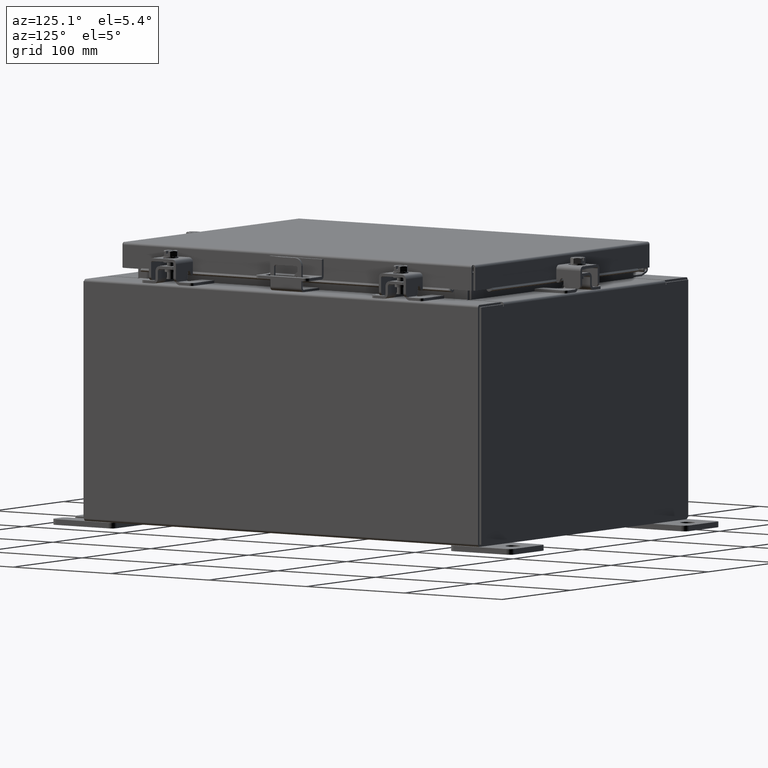
[diagram: clean part render]
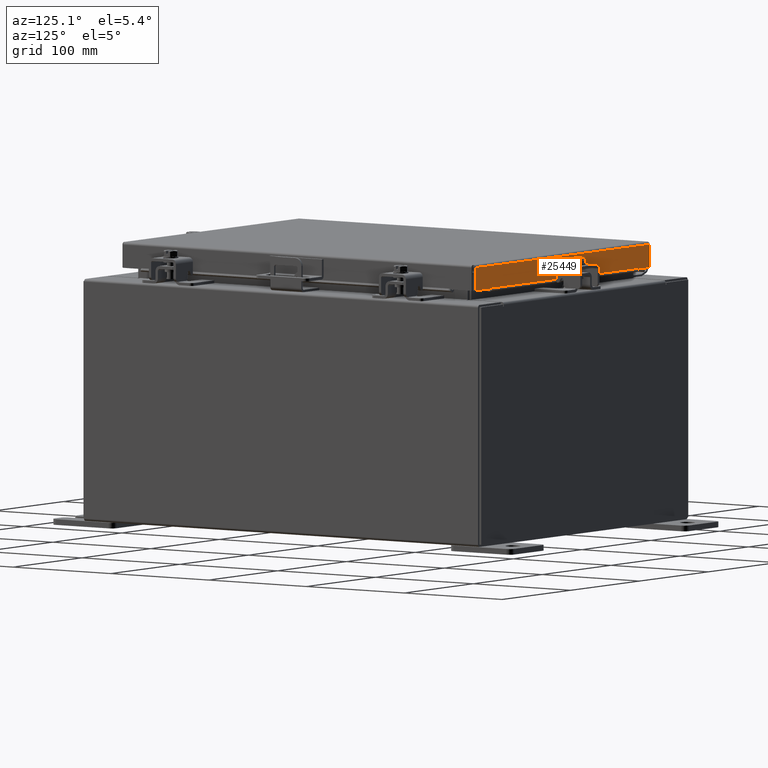
[diagram: same view with one face highlighted and labeled with its STEP entity id]
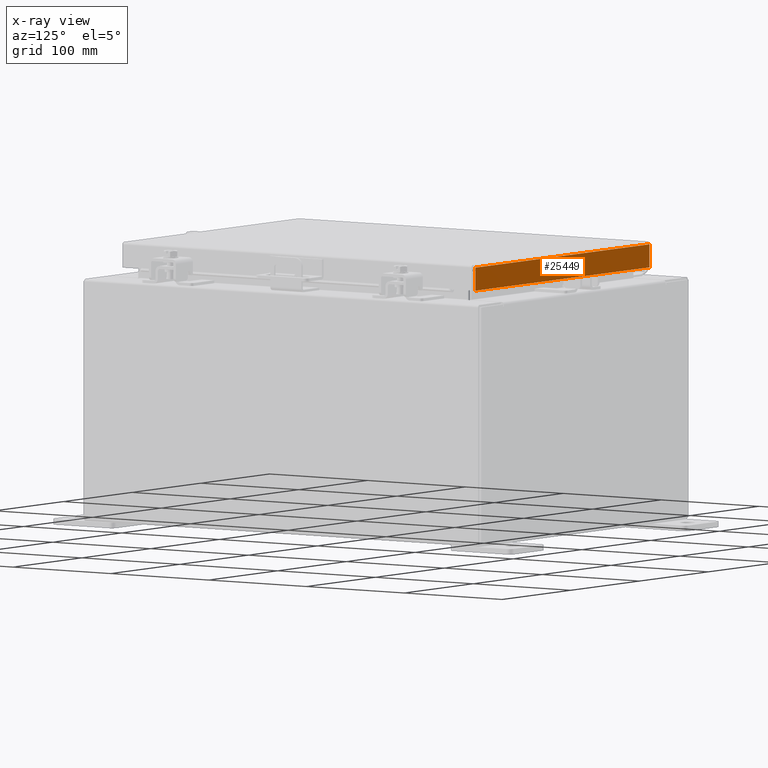
[diagram: x-ray of the same camera — body ghosted, the highlighted face saturated]
A machine part, auxiliary view. The second image highlights one B-rep face of the part: STEP entity #25449.
The next image is the same camera in x-ray: the body ghosted, the highlighted face saturated — about 0% of this face is hidden behind the body in this view.
In plain terms, the highlighted planar face has unit normal (0, -1, -0).
Its self-contained STEP definition (entity closure, byte-faithful):
#674 = DIRECTION ( 'NONE',  ( 0.0000000000000000000, 2.818880942772355800E-015, -1.000000000000000000 ) ) ;
#2104 = CARTESIAN_POINT ( 'NONE',  ( -4.989157864376269700, 7.094000000000002100, -0.8500000000000008700 ) ) ;
#3568 = ORIENTED_EDGE ( 'NONE', *, *, #5318, .F. ) ;
#3609 = VECTOR ( 'NONE', #17581, 39.37007874015748100 ) ;
#3754 = CARTESIAN_POINT ( 'NONE',  ( 4.239157864376265300, 7.093999999999996800, -0.8500000000000014200 ) ) ;
#4189 = CARTESIAN_POINT ( 'NONE',  ( -5.078000000000001200, 7.094000000000000300, -0.08770000000000007000 ) ) ;
#4398 = VECTOR ( 'NONE', #5850, 39.37007874015748100 ) ;
#4583 = VERTEX_POINT ( 'NONE', #15634 ) ;
#5318 = EDGE_CURVE ( 'NONE', #23963, #20522, #25183, .T. ) ;
#5321 = CARTESIAN_POINT ( 'NONE',  ( 4.989157864376268000, 7.094000000000000300, -0.08770000000000007000 ) ) ;
#5396 = CARTESIAN_POINT ( 'NONE',  ( -4.989157864376269700, 7.094000000000000300, -0.08770000000000007000 ) ) ;
#5850 = DIRECTION ( 'NONE',  ( -0.0000000000000000000, 2.818880942772355800E-015, -1.000000000000000000 ) ) ;
#6081 = FACE_OUTER_BOUND ( 'NONE', #12523, .T. ) ;
#6633 = PLANE ( 'NONE',  #14930 ) ;
#7409 = LINE ( 'NONE', #8826, #22161 ) ;
#8186 = EDGE_CURVE ( 'NONE', #18097, #4583, #7409, .T. ) ;
#8378 = EDGE_CURVE ( 'NONE', #20522, #15212, #18379, .T. ) ;
#8560 = VERTEX_POINT ( 'NONE', #3754 ) ;
#8826 = CARTESIAN_POINT ( 'NONE',  ( 4.989157864376268000, 7.094000000000000300, 2.025795506403867700E-014 ) ) ;
#8937 = DIRECTION ( 'NONE',  ( 1.000000000000000000, 4.379057701015054300E-047, 1.210448599004449200E-016 ) ) ;
#8938 = LINE ( 'NONE', #23584, #3609 ) ;
#9663 = LINE ( 'NONE', #4189, #23183 ) ;
#10610 = ORIENTED_EDGE ( 'NONE', *, *, #17746, .F. ) ;
#10839 = DIRECTION ( 'NONE',  ( 0.0000000000000000000, 2.818880942772355800E-015, -1.000000000000000000 ) ) ;
#10975 = LINE ( 'NONE', #23024, #21024 ) ;
#10993 = DIRECTION ( 'NONE',  ( 1.000000000000000000, 4.379057701015054300E-047, 1.210448599004449200E-016 ) ) ;
#11093 = EDGE_CURVE ( 'NONE', #8560, #4583, #10975, .T. ) ;
#12523 = EDGE_LOOP ( 'NONE', ( #10610, #23743, #14621, #18850, #12795, #3568 ) ) ;
#12679 = DIRECTION ( 'NONE',  ( 3.412110487939139000E-031, -1.000000000000000000, -2.818880942772355800E-015 ) ) ;
#12795 = ORIENTED_EDGE ( 'NONE', *, *, #8378, .F. ) ;
#14621 = ORIENTED_EDGE ( 'NONE', *, *, #11093, .F. ) ;
#14930 = AXIS2_PLACEMENT_3D ( 'NONE', #22532, #12679, #674 ) ;
#15212 = VERTEX_POINT ( 'NONE', #25044 ) ;
#15634 = CARTESIAN_POINT ( 'NONE',  ( 4.989157864376268000, 7.094000000000002100, -0.8499999999999996400 ) ) ;
#15851 = CARTESIAN_POINT ( 'NONE',  ( -4.989157864376269700, 7.094000000000000300, -0.07469999999999978000 ) ) ;
#16201 = DIRECTION ( 'NONE',  ( -1.000000000000000000, -3.412110487939139000E-031, -9.300620212429613300E-046 ) ) ;
#17581 = DIRECTION ( 'NONE',  ( 1.000000000000000000, -0.0000000000000000000, -0.0000000000000000000 ) ) ;
#17746 = EDGE_CURVE ( 'NONE', #18097, #23963, #9663, .T. ) ;
#18097 = VERTEX_POINT ( 'NONE', #5321 ) ;
#18379 = LINE ( 'NONE', #22995, #22461 ) ;
#18850 = ORIENTED_EDGE ( 'NONE', *, *, #20354, .F. ) ;
#20354 = EDGE_CURVE ( 'NONE', #15212, #8560, #8938, .T. ) ;
#20522 = VERTEX_POINT ( 'NONE', #2104 ) ;
#21024 = VECTOR ( 'NONE', #10993, 39.37007874015748100 ) ;
#22161 = VECTOR ( 'NONE', #10839, 39.37007874015748100 ) ;
#22461 = VECTOR ( 'NONE', #8937, 39.37007874015748100 ) ;
#22532 = CARTESIAN_POINT ( 'NONE',  ( -2.420551180144025400E-030, 7.094000000000000300, 2.025795506403867700E-014 ) ) ;
#22995 = CARTESIAN_POINT ( 'NONE',  ( -5.078000000000001200, 7.094000000000002100, -0.8500000000000008700 ) ) ;
#23024 = CARTESIAN_POINT ( 'NONE',  ( -5.078000000000001200, 7.094000000000002100, -0.8500000000000008700 ) ) ;
#23183 = VECTOR ( 'NONE', #16201, 39.37007874015748100 ) ;
#23584 = CARTESIAN_POINT ( 'NONE',  ( -4.239157864376268800, 7.093999999999996800, -0.8500000000000014200 ) ) ;
#23743 = ORIENTED_EDGE ( 'NONE', *, *, #8186, .T. ) ;
#23963 = VERTEX_POINT ( 'NONE', #5396 ) ;
#25044 = CARTESIAN_POINT ( 'NONE',  ( -4.239157864376268800, 7.093999999999996800, -0.8500000000000014200 ) ) ;
#25183 = LINE ( 'NONE', #15851, #4398 ) ;
#25449 = ADVANCED_FACE ( 'NONE', ( #6081 ), #6633, .F. ) ;